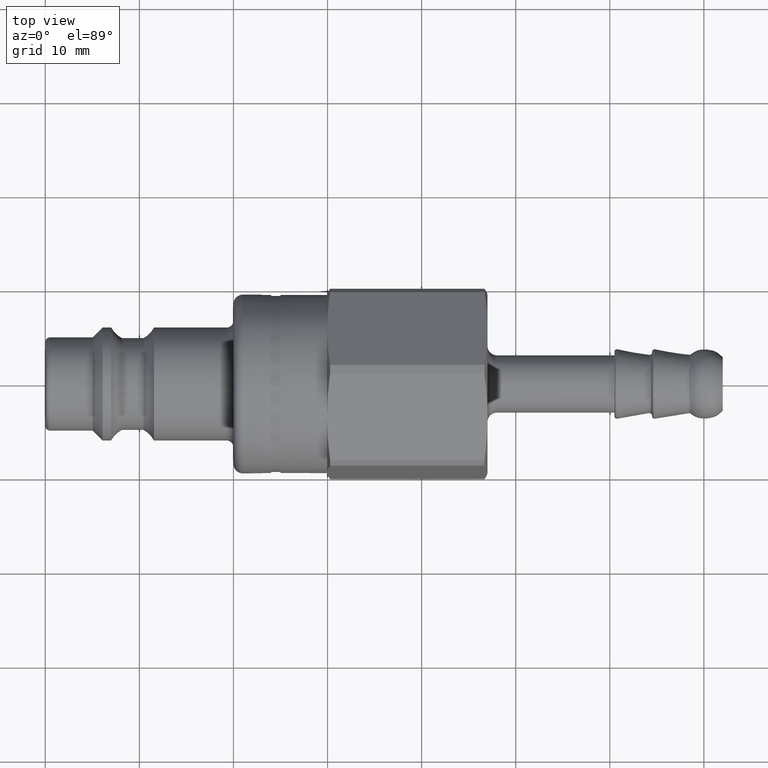
[diagram: clean part render]
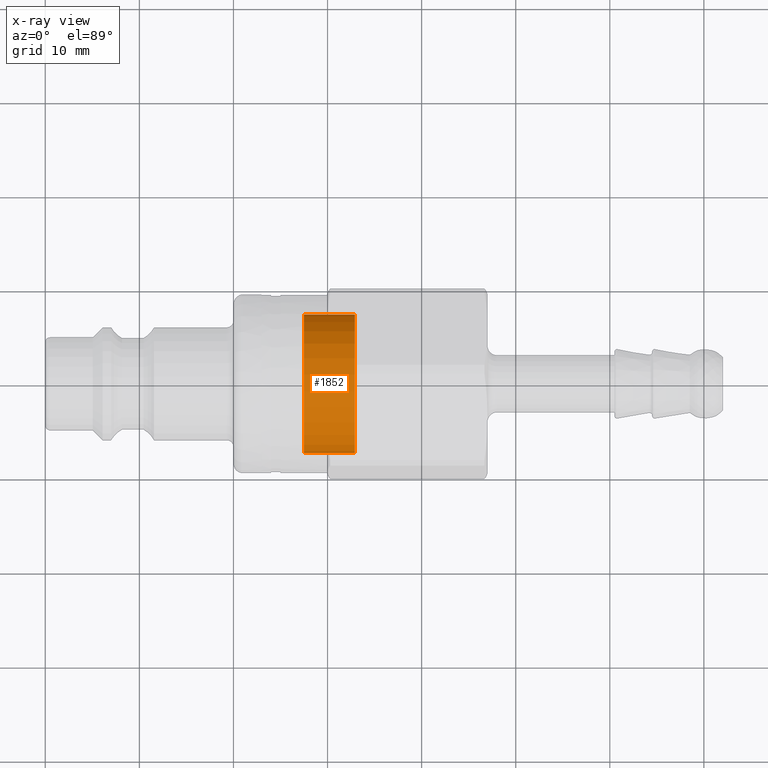
[diagram: x-ray — body ghosted, one internal face saturated and labeled with its STEP entity id]
A machine part, top view, then the same camera in x-ray: the body is ghosted and one INTERNAL B-rep face — a face not visible from any outside direction — is saturated and labeled: STEP entity #1852.
In plain terms, the highlighted cylindrical surface (bore or boss wall) has radius 7.3729 mm, axis along (1, 0, 0).
Its self-contained STEP definition (entity closure, byte-faithful):
#1749=CARTESIAN_POINT('',(27.5,-7.372867062347631,9.029158E-016));
#1750=VERTEX_POINT('',#1749);
#1751=CARTESIAN_POINT('',(27.5,0.0,0.0));
#1752=DIRECTION('',(-1.0,0.0,0.0));
#1753=DIRECTION('',(0.0,1.0,0.0));
#1754=AXIS2_PLACEMENT_3D('',#1751,#1752,#1753);
#1755=CIRCLE('',#1754,7.372867062347631);
#1756=EDGE_CURVE('',#1750,#1750,#1755,.T.);
#1777=CARTESIAN_POINT('',(32.899999999999984,-7.372867062347631,-9.029158E-016));
#1778=VERTEX_POINT('',#1777);
#1779=CARTESIAN_POINT('',(32.899999999999984,0.0,0.0));
#1780=DIRECTION('',(1.0,0.0,0.0));
#1781=DIRECTION('',(0.0,1.0,0.0));
#1782=AXIS2_PLACEMENT_3D('',#1779,#1780,#1781);
#1783=CIRCLE('',#1782,7.372867062347631);
#1784=EDGE_CURVE('',#1778,#1778,#1783,.T.);
#1841=CARTESIAN_POINT('',(35.193904860452861,0.0,0.0));
#1842=DIRECTION('',(1.0,0.0,0.0));
#1843=DIRECTION('',(0.0,1.0,0.0));
#1844=AXIS2_PLACEMENT_3D('',#1841,#1842,#1843);
#1845=CYLINDRICAL_SURFACE('',#1844,7.372867062347631);
#1846=ORIENTED_EDGE('',*,*,#1784,.F.);
#1847=EDGE_LOOP('',(#1846));
#1848=FACE_OUTER_BOUND('',#1847,.T.);
#1849=ORIENTED_EDGE('',*,*,#1756,.F.);
#1850=EDGE_LOOP('',(#1849));
#1851=FACE_BOUND('',#1850,.T.);
#1852=ADVANCED_FACE('',(#1848,#1851),#1845,.T.);